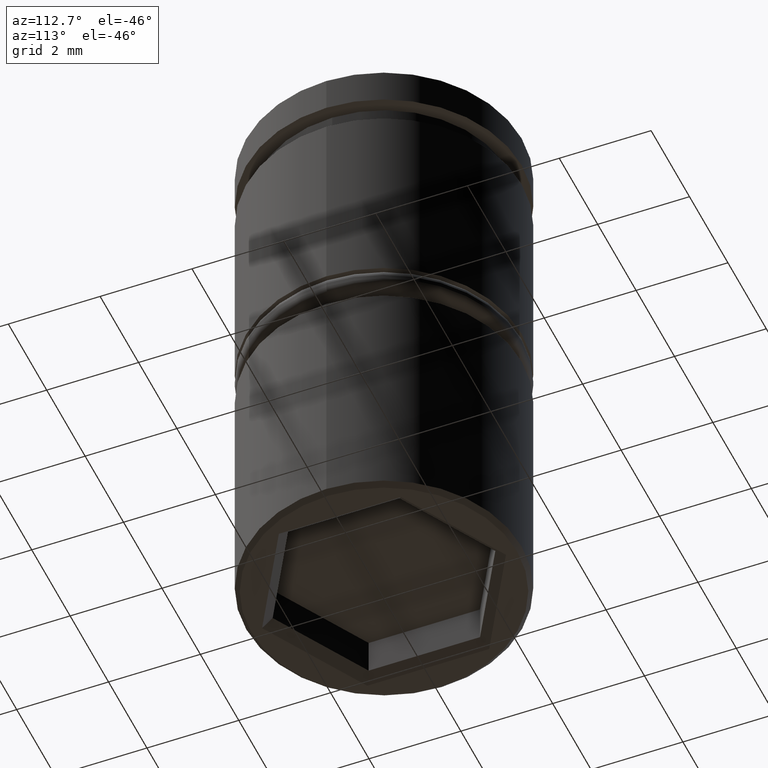
[diagram: clean part render]
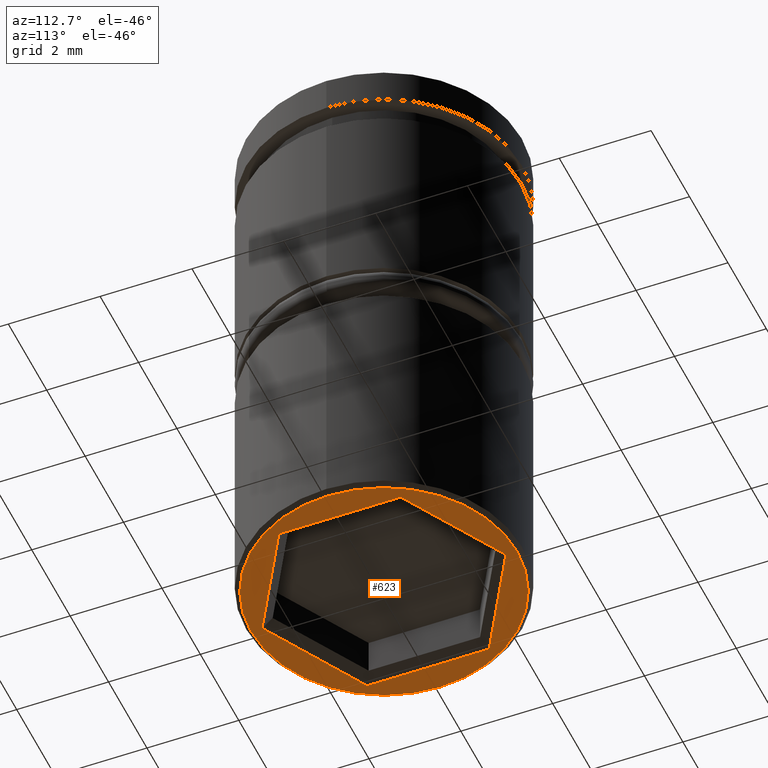
[diagram: same view with one face highlighted and labeled with its STEP entity id]
A machine part, auxiliary view. The second image highlights one B-rep face of the part: STEP entity #623.
In plain terms, the highlighted planar face has unit normal (0, 0, -1).
Its self-contained STEP definition (entity closure, byte-faithful):
#32 = EDGE_CURVE ( 'NONE', #309, #983, #157, .T. ) ;
#65 = CARTESIAN_POINT ( 'NONE',  ( 0.000000000000000000, 3.000000000000000000, -12.00000000000000000 ) ) ;
#68 = LINE ( 'NONE', #340, #411 ) ;
#78 = DIRECTION ( 'NONE',  ( -1.000000000000000000, 0.000000000000000000, -0.000000000000000000 ) ) ;
#88 = CARTESIAN_POINT ( 'NONE',  ( 2.299999999999997158, 1.212435565298211504, -12.00000000000000000 ) ) ;
#155 = EDGE_CURVE ( 'NONE', #393, #309, #1140, .T. ) ;
#157 = LINE ( 'NONE', #978, #240 ) ;
#171 = DIRECTION ( 'NONE',  ( 0.8660254037844385966, -0.5000000000000001110, 0.000000000000000000 ) ) ;
#192 = DIRECTION ( 'NONE',  ( 0.000000000000000000, 0.000000000000000000, -1.000000000000000000 ) ) ;
#202 = CIRCLE ( 'NONE', #885, 2.899999999999996803 ) ;
#203 = ORIENTED_EDGE ( 'NONE', *, *, #815, .T. ) ;
#231 = EDGE_CURVE ( 'NONE', #983, #982, #893, .T. ) ;
#240 = VECTOR ( 'NONE', #785, 1000.000000000000114 ) ;
#269 = DIRECTION ( 'NONE',  ( 0.000000000000000000, 0.000000000000000000, -1.000000000000000000 ) ) ;
#270 = CARTESIAN_POINT ( 'NONE',  ( -2.199999999999997069, 1.385640646055100289, -12.00000000000000000 ) ) ;
#273 = DIRECTION ( 'NONE',  ( -1.000000000000000000, 0.000000000000000000, 0.000000000000000000 ) ) ;
#276 = CIRCLE ( 'NONE', #314, 2.899999999999996803 ) ;
#280 = EDGE_LOOP ( 'NONE', ( #836, #366, #809, #737, #635, #1177 ) ) ;
#301 = EDGE_CURVE ( 'NONE', #1136, #471, #68, .T. ) ;
#305 = LINE ( 'NONE', #1024, #689 ) ;
#309 = VERTEX_POINT ( 'NONE', #693 ) ;
#314 = AXIS2_PLACEMENT_3D ( 'NONE', #923, #192, #1114 ) ;
#340 = CARTESIAN_POINT ( 'NONE',  ( -0.1000000000000006856, -2.598076211353312903, -12.00000000000000000 ) ) ;
#366 = ORIENTED_EDGE ( 'NONE', *, *, #453, .T. ) ;
#387 = CARTESIAN_POINT ( 'NONE',  ( 2.899999999999996803, 0.000000000000000000, -12.00000000000000000 ) ) ;
#393 = VERTEX_POINT ( 'NONE', #905 ) ;
#395 = CARTESIAN_POINT ( 'NONE',  ( 3.995375355790125448E-16, 2.655811238272274277, -12.00000000000000000 ) ) ;
#396 = FACE_OUTER_BOUND ( 'NONE', #931, .T. ) ;
#411 = VECTOR ( 'NONE', #171, 1000.000000000000114 ) ;
#441 = EDGE_CURVE ( 'NONE', #554, #794, #276, .T. ) ;
#453 = EDGE_CURVE ( 'NONE', #471, #393, #551, .T. ) ;
#471 = VERTEX_POINT ( 'NONE', #919 ) ;
#534 = ORIENTED_EDGE ( 'NONE', *, *, #441, .T. ) ;
#538 = VECTOR ( 'NONE', #930, 1000.000000000000000 ) ;
#546 = CARTESIAN_POINT ( 'NONE',  ( -2.299999999999997158, -1.327905619136137805, -12.00000000000000000 ) ) ;
#551 = LINE ( 'NONE', #911, #538 ) ;
#554 = VERTEX_POINT ( 'NONE', #1026 ) ;
#587 = DIRECTION ( 'NONE',  ( 0.000000000000000000, -1.000000000000000000, 0.000000000000000000 ) ) ;
#613 = DIRECTION ( 'NONE',  ( -0.8660254037844388186, -0.4999999999999996669, 0.000000000000000000 ) ) ;
#623 = ADVANCED_FACE ( 'NONE', ( #842, #396 ), #980, .T. ) ;
#635 = ORIENTED_EDGE ( 'NONE', *, *, #231, .T. ) ;
#671 = VECTOR ( 'NONE', #1100, 1000.000000000000000 ) ;
#689 = VECTOR ( 'NONE', #587, 1000.000000000000000 ) ;
#693 = CARTESIAN_POINT ( 'NONE',  ( 2.299999999999997158, 1.327905619136136917, -12.00000000000000000 ) ) ;
#737 = ORIENTED_EDGE ( 'NONE', *, *, #32, .T. ) ;
#742 = DIRECTION ( 'NONE',  ( 0.000000000000000000, 0.000000000000000000, -1.000000000000000000 ) ) ;
#760 = VECTOR ( 'NONE', #613, 1000.000000000000000 ) ;
#785 = DIRECTION ( 'NONE',  ( -0.8660254037844385966, 0.4999999999999999445, 0.000000000000000000 ) ) ;
#794 = VERTEX_POINT ( 'NONE', #387 ) ;
#809 = ORIENTED_EDGE ( 'NONE', *, *, #155, .T. ) ;
#815 = EDGE_CURVE ( 'NONE', #794, #554, #202, .T. ) ;
#836 = ORIENTED_EDGE ( 'NONE', *, *, #301, .T. ) ;
#842 = FACE_BOUND ( 'NONE', #280, .T. ) ;
#884 = AXIS2_PLACEMENT_3D ( 'NONE', #65, #269, #78 ) ;
#885 = AXIS2_PLACEMENT_3D ( 'NONE', #1083, #742, #273 ) ;
#893 = LINE ( 'NONE', #270, #760 ) ;
#905 = CARTESIAN_POINT ( 'NONE',  ( 2.299999999999997158, -1.327905619136138915, -12.00000000000000000 ) ) ;
#911 = CARTESIAN_POINT ( 'NONE',  ( 2.199999999999997513, -1.385640646055101399, -12.00000000000000000 ) ) ;
#919 = CARTESIAN_POINT ( 'NONE',  ( 4.012155603717831438E-16, -2.655811238272276054, -12.00000000000000000 ) ) ;
#923 = CARTESIAN_POINT ( 'NONE',  ( 0.000000000000000000, 0.000000000000000000, -12.00000000000000000 ) ) ;
#930 = DIRECTION ( 'NONE',  ( 0.8660254037844387076, 0.4999999999999998890, 0.000000000000000000 ) ) ;
#931 = EDGE_LOOP ( 'NONE', ( #203, #534 ) ) ;
#978 = CARTESIAN_POINT ( 'NONE',  ( 0.1000000000000002970, 2.598076211353312015, -12.00000000000000000 ) ) ;
#980 = PLANE ( 'NONE',  #884 ) ;
#982 = VERTEX_POINT ( 'NONE', #1138 ) ;
#983 = VERTEX_POINT ( 'NONE', #395 ) ;
#989 = EDGE_CURVE ( 'NONE', #982, #1136, #305, .T. ) ;
#1024 = CARTESIAN_POINT ( 'NONE',  ( -2.299999999999997158, -1.212435565298212614, -12.00000000000000000 ) ) ;
#1026 = CARTESIAN_POINT ( 'NONE',  ( -2.899999999999996803, 3.612708057484690125E-16, -12.00000000000000000 ) ) ;
#1083 = CARTESIAN_POINT ( 'NONE',  ( 0.000000000000000000, 0.000000000000000000, -12.00000000000000000 ) ) ;
#1100 = DIRECTION ( 'NONE',  ( -0.000000000000000000, 1.000000000000000000, 0.000000000000000000 ) ) ;
#1114 = DIRECTION ( 'NONE',  ( -1.000000000000000000, 0.000000000000000000, 0.000000000000000000 ) ) ;
#1136 = VERTEX_POINT ( 'NONE', #546 ) ;
#1138 = CARTESIAN_POINT ( 'NONE',  ( -2.299999999999997158, 1.327905619136137583, -12.00000000000000000 ) ) ;
#1140 = LINE ( 'NONE', #88, #671 ) ;
#1177 = ORIENTED_EDGE ( 'NONE', *, *, #989, .T. ) ;